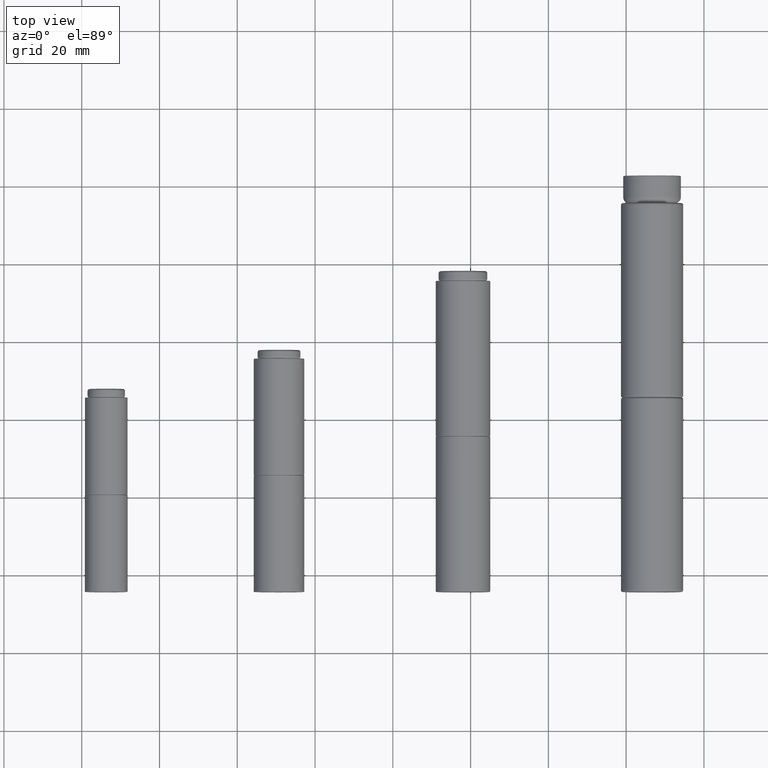
[diagram: clean part render]
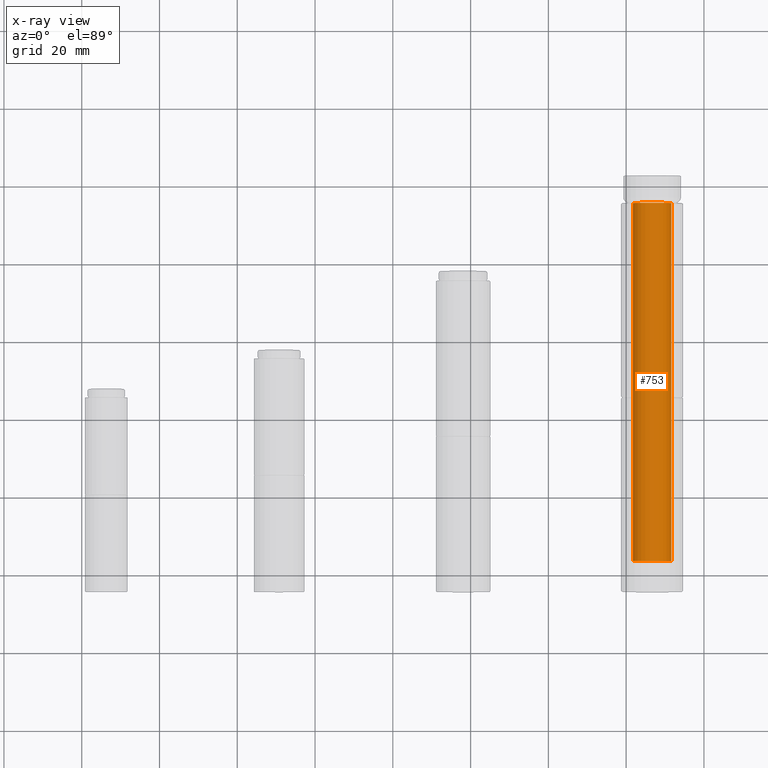
[diagram: x-ray — body ghosted, one internal face saturated and labeled with its STEP entity id]
A machine part, top view, then the same camera in x-ray: the body is ghosted and one INTERNAL B-rep face — a face not visible from any outside direction — is saturated and labeled: STEP entity #753.
In plain terms, the highlighted cylindrical surface (bore or boss wall) has radius 4.95 mm, axis along (0, 1, 0).
Its self-contained STEP definition (entity closure, byte-faithful):
#141=CYLINDRICAL_SURFACE('',#879,4.95);
#184=FACE_BOUND('',#347,.T.);
#245=FACE_OUTER_BOUND('',#346,.T.);
#346=EDGE_LOOP('',(#646));
#347=EDGE_LOOP('',(#647));
#426=CIRCLE('',#877,4.95);
#427=CIRCLE('',#880,4.95);
#486=VERTEX_POINT('',#1375);
#487=VERTEX_POINT('',#1379);
#546=EDGE_CURVE('',#486,#486,#426,.T.);
#547=EDGE_CURVE('',#487,#487,#427,.T.);
#646=ORIENTED_EDGE('',*,*,#547,.F.);
#647=ORIENTED_EDGE('',*,*,#546,.F.);
#753=ADVANCED_FACE('',(#245,#184),#141,.T.);
#877=AXIS2_PLACEMENT_3D('',#1376,#1124,#1125);
#879=AXIS2_PLACEMENT_3D('',#1378,#1128,#1129);
#880=AXIS2_PLACEMENT_3D('',#1380,#1130,#1131);
#1124=DIRECTION('center_axis',(1.22124532708767E-16,-1.,0.));
#1125=DIRECTION('ref_axis',(1.,0.,0.));
#1128=DIRECTION('center_axis',(-1.22124532708767E-16,1.,0.));
#1129=DIRECTION('ref_axis',(-1.,0.,0.));
#1130=DIRECTION('center_axis',(-1.22124532708767E-16,1.,0.));
#1131=DIRECTION('ref_axis',(1.,1.22124532708767E-16,0.));
#1375=CARTESIAN_POINT('',(-4.94999999999999,-99.,-6.0620016557794E-16));
#1376=CARTESIAN_POINT('Origin',(1.2090328738168E-14,-99.,0.));
#1378=CARTESIAN_POINT('Origin',(6.53366249991904E-15,-53.5,0.));
#1379=CARTESIAN_POINT('',(-4.95,-6.99999999999998,0.));
#1380=CARTESIAN_POINT('Origin',(8.54871728961367E-16,-6.99999999999998,
0.));